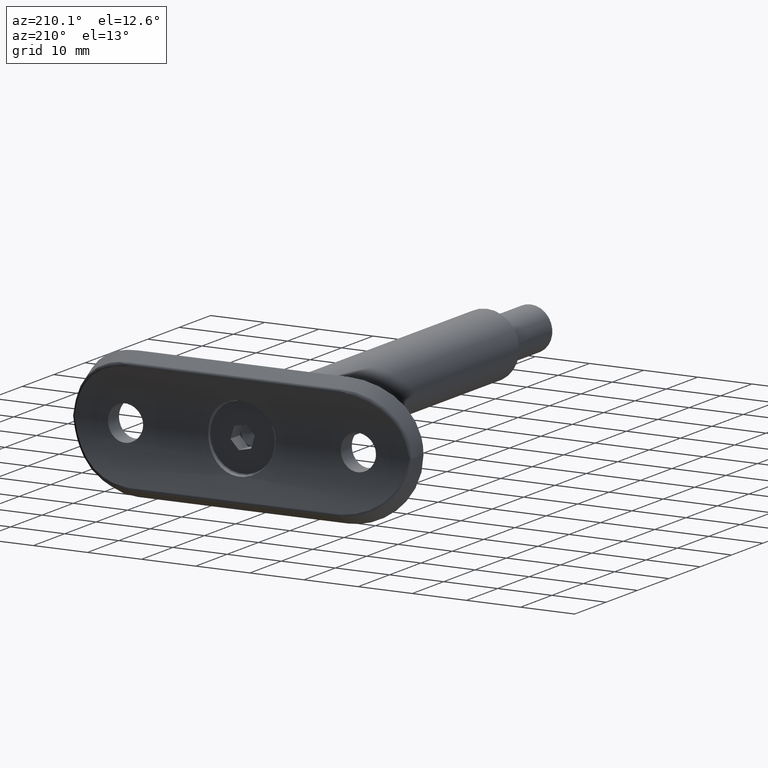
[diagram: clean part render]
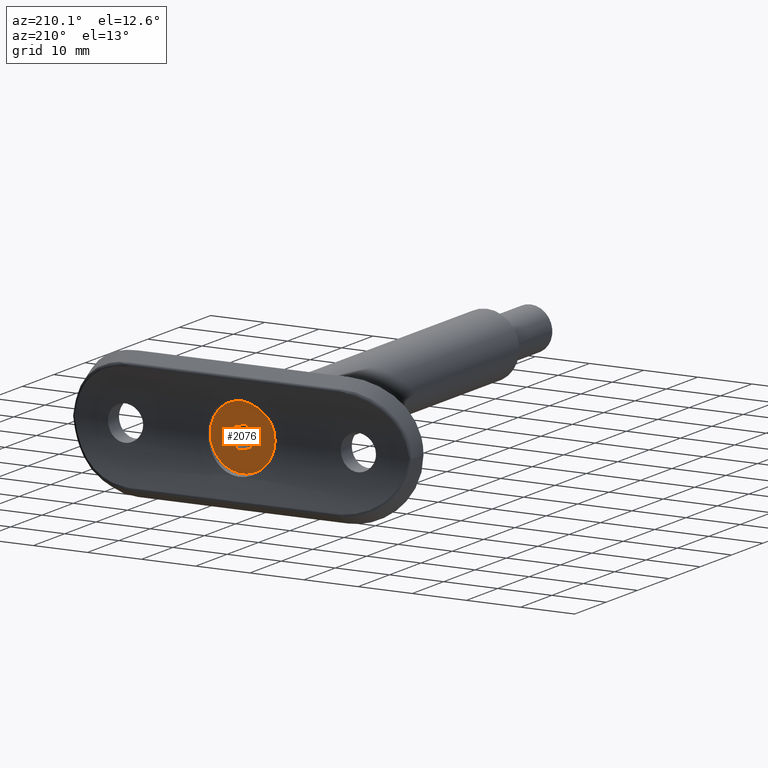
[diagram: same view with one face highlighted and labeled with its STEP entity id]
A machine part, auxiliary view. The second image highlights one B-rep face of the part: STEP entity #2076.
In plain terms, the highlighted planar face has unit normal (-0, 1, -0).
Its self-contained STEP definition (entity closure, byte-faithful):
#55 = CARTESIAN_POINT ( 'NONE',  ( 1.154700538379250600, -2.000000000000000000, -0.0000000000000000000 ) ) ;
#120 = ORIENTED_EDGE ( 'NONE', *, *, #7184, .T. ) ;
#179 = DIRECTION ( 'NONE',  ( 0.5000000000000001100, 0.8660254037844386000, 0.0000000000000000000 ) ) ;
#196 = LINE ( 'NONE', #2634, #9072 ) ;
#295 = VECTOR ( 'NONE', #8099, 1000.000000000000100 ) ;
#484 = EDGE_CURVE ( 'NONE', #4162, #13810, #3001, .T. ) ;
#785 = ORIENTED_EDGE ( 'NONE', *, *, #3715, .F. ) ;
#1479 = CARTESIAN_POINT ( 'NONE',  ( 1.154700538379250600, -2.000000000000000000, -0.0000000000000000000 ) ) ;
#2076 = ADVANCED_FACE ( 'NONE', ( #12424, #13517 ), #9719, .T. ) ;
#2139 = CARTESIAN_POINT ( 'NONE',  ( 0.0000000000000000000, 6.000000000000000000, -7.347880794884117800E-016 ) ) ;
#2210 = DIRECTION ( 'NONE',  ( 0.0000000000000000000, 1.000000000000000000, 1.224646799147353200E-016 ) ) ;
#2634 = CARTESIAN_POINT ( 'NONE',  ( -1.154700538379252400, 1.999999999999999600, 0.0000000000000000000 ) ) ;
#2865 = EDGE_CURVE ( 'NONE', #11391, #9129, #8783, .T. ) ;
#2887 = CARTESIAN_POINT ( 'NONE',  ( -1.154700538379255000, -2.000000000000000000, 0.0000000000000000000 ) ) ;
#2960 = LINE ( 'NONE', #55, #8419 ) ;
#3001 = LINE ( 'NONE', #13787, #295 ) ;
#3112 = VERTEX_POINT ( 'NONE', #9254 ) ;
#3689 = ORIENTED_EDGE ( 'NONE', *, *, #2865, .F. ) ;
#3711 = EDGE_LOOP ( 'NONE', ( #7177, #785, #3689, #11346, #12141, #13597 ) ) ;
#3715 = EDGE_CURVE ( 'NONE', #9129, #4162, #2960, .T. ) ;
#4162 = VERTEX_POINT ( 'NONE', #2887 ) ;
#4531 = CARTESIAN_POINT ( 'NONE',  ( -2.309401076758504700, -1.734723475976807100E-015, -7.347880794884121700E-016 ) ) ;
#4594 = DIRECTION ( 'NONE',  ( -0.0000000000000000000, 1.224646799147353200E-016, -1.000000000000000000 ) ) ;
#5239 = VERTEX_POINT ( 'NONE', #2139 ) ;
#5991 = AXIS2_PLACEMENT_3D ( 'NONE', #9262, #4594, #2210 ) ;
#6069 = DIRECTION ( 'NONE',  ( 1.000000000000000000, -1.877893248421448300E-016, 0.0000000000000000000 ) ) ;
#6201 = CARTESIAN_POINT ( 'NONE',  ( 0.0000000000000000000, 6.000000000000000000, 0.0000000000000000000 ) ) ;
#6239 = EDGE_CURVE ( 'NONE', #13810, #3112, #9094, .T. ) ;
#6738 = CARTESIAN_POINT ( 'NONE',  ( 2.309401076758502500, 5.022240126475751500E-017, 0.0000000000000000000 ) ) ;
#7177 = ORIENTED_EDGE ( 'NONE', *, *, #484, .F. ) ;
#7184 = EDGE_CURVE ( 'NONE', #5239, #5239, #12342, .T. ) ;
#7266 = VERTEX_POINT ( 'NONE', #8247 ) ;
#7333 = DIRECTION ( 'NONE',  ( 0.4999999999999998900, -0.8660254037844387100, 0.0000000000000000000 ) ) ;
#8010 = VECTOR ( 'NONE', #179, 1000.000000000000100 ) ;
#8099 = DIRECTION ( 'NONE',  ( -0.4999999999999997800, 0.8660254037844388200, 0.0000000000000000000 ) ) ;
#8247 = CARTESIAN_POINT ( 'NONE',  ( 1.154700538379251700, 1.999999999999999100, 0.0000000000000000000 ) ) ;
#8419 = VECTOR ( 'NONE', #9330, 1000.000000000000000 ) ;
#8783 = LINE ( 'NONE', #11995, #13891 ) ;
#9042 = AXIS2_PLACEMENT_3D ( 'NONE', #6201, #14350, #10887 ) ;
#9072 = VECTOR ( 'NONE', #6069, 1000.000000000000000 ) ;
#9094 = LINE ( 'NONE', #12902, #8010 ) ;
#9129 = VERTEX_POINT ( 'NONE', #1479 ) ;
#9221 = EDGE_LOOP ( 'NONE', ( #120 ) ) ;
#9254 = CARTESIAN_POINT ( 'NONE',  ( -1.154700538379252400, 1.999999999999999600, 0.0000000000000000000 ) ) ;
#9262 = CARTESIAN_POINT ( 'NONE',  ( 0.0000000000000000000, 1.799711739194228900E-031, -1.469576158976823800E-015 ) ) ;
#9330 = DIRECTION ( 'NONE',  ( -1.000000000000000000, 0.0000000000000000000, 0.0000000000000000000 ) ) ;
#9623 = CARTESIAN_POINT ( 'NONE',  ( 1.154700538379251700, 1.999999999999999100, 0.0000000000000000000 ) ) ;
#9719 = PLANE ( 'NONE',  #9042 ) ;
#10314 = EDGE_CURVE ( 'NONE', #3112, #7266, #196, .T. ) ;
#10368 = EDGE_CURVE ( 'NONE', #7266, #11391, #12880, .T. ) ;
#10887 = DIRECTION ( 'NONE',  ( 0.0000000000000000000, 1.000000000000000000, 1.224646799147353200E-016 ) ) ;
#11346 = ORIENTED_EDGE ( 'NONE', *, *, #10368, .F. ) ;
#11391 = VERTEX_POINT ( 'NONE', #6738 ) ;
#11995 = CARTESIAN_POINT ( 'NONE',  ( 2.309401076758502500, 5.022240126475751500E-017, 0.0000000000000000000 ) ) ;
#12090 = DIRECTION ( 'NONE',  ( -0.5000000000000001100, -0.8660254037844386000, -0.0000000000000000000 ) ) ;
#12141 = ORIENTED_EDGE ( 'NONE', *, *, #10314, .F. ) ;
#12342 = CIRCLE ( 'NONE', #5991, 6.000000000000000000 ) ;
#12424 = FACE_BOUND ( 'NONE', #3711, .T. ) ;
#12880 = LINE ( 'NONE', #9623, #13790 ) ;
#12902 = CARTESIAN_POINT ( 'NONE',  ( -2.309401076758504700, -1.752598683377171700E-015, 0.0000000000000000000 ) ) ;
#13517 = FACE_OUTER_BOUND ( 'NONE', #9221, .T. ) ;
#13597 = ORIENTED_EDGE ( 'NONE', *, *, #6239, .F. ) ;
#13787 = CARTESIAN_POINT ( 'NONE',  ( -1.154700538379255000, -2.000000000000000000, 0.0000000000000000000 ) ) ;
#13790 = VECTOR ( 'NONE', #7333, 1000.000000000000000 ) ;
#13810 = VERTEX_POINT ( 'NONE', #4531 ) ;
#13891 = VECTOR ( 'NONE', #12090, 1000.000000000000000 ) ;
#14350 = DIRECTION ( 'NONE',  ( -0.0000000000000000000, 1.224646799147353200E-016, -1.000000000000000000 ) ) ;